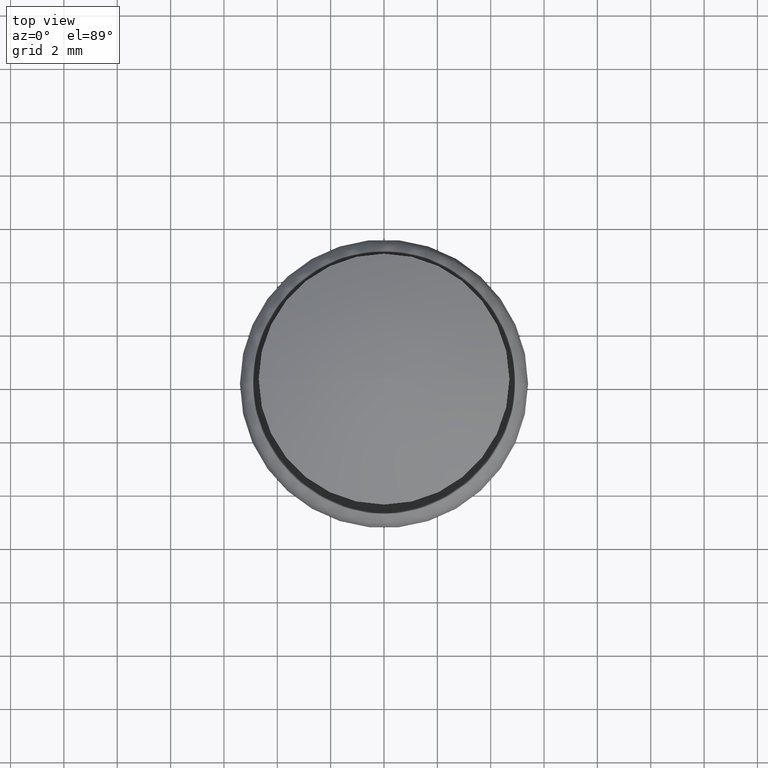
[diagram: clean part render]
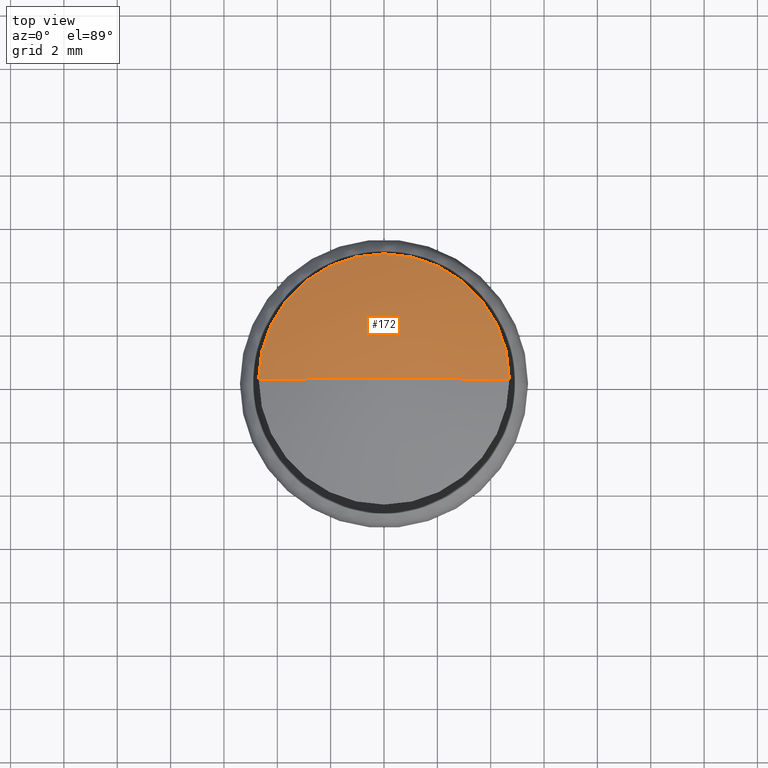
[diagram: same view with one face highlighted and labeled with its STEP entity id]
A machine part, top view. The second image highlights one B-rep face of the part: STEP entity #172.
In plain terms, the highlighted spherical surface has radius 11.545 mm.
Its self-contained STEP definition (entity closure, byte-faithful):
#172=ADVANCED_FACE('',(#798),#797,.T.);
#797=SPHERICAL_SURFACE('',#1439,1.15450000000E+01);
#798=FACE_OUTER_BOUND('',#1440,.T.);
#1436=CARTESIAN_POINT('',(0.00000000000E+00,0.00000000000E+00,-5.04500000000E+00));
#1437=DIRECTION('',(0.00000000000E+00,0.00000000000E+00,-1.00000000000E+00));
#1438=DIRECTION('',(-1.00000000000E+00,1.22460635382E-16,-0.00000000000E+00));
#1439=AXIS2_PLACEMENT_3D('',#1436,#1437,#1438);
#1440=EDGE_LOOP('',(#1928,#1929,#1930));
#1928=ORIENTED_EDGE('',*,*,#2170,.F.);
#1929=ORIENTED_EDGE('',*,*,#2171,.F.);
#1930=ORIENTED_EDGE('',*,*,#2172,.T.);
#2170=EDGE_CURVE('',#3296,#3297,#3298,.T.);
#2171=EDGE_CURVE('',#3304,#3296,#3305,.T.);
#2172=EDGE_CURVE('',#3304,#3297,#3311,.T.);
#3296=VERTEX_POINT('',#4235);
#3297=VERTEX_POINT('',#4236);
#3298=CIRCLE('',#4240,4.70000000000E+00);
#3304=VERTEX_POINT('',#4241);
#3305=(BOUNDED_CURVE() B_SPLINE_CURVE(2,(#4242,#4243,#4244),.UNSPECIFIED.,.F.,.F.) B_SPLINE_CURVE_WITH_KNOTS((3,3),(0.00000000000E+00,1.00000000000E+00),.UNSPECIFIED.) CURVE() GEOMETRIC_REPRESENTATION_ITEM() RATIONAL_B_SPLINE_CURVE((1.00000000000E+00,9.78105928985E-01,1.00000000000E+00)) REPRESENTATION_ITEM('') );
#3311=(BOUNDED_CURVE() B_SPLINE_CURVE(2,(#4245,#4246,#4247),.UNSPECIFIED.,.F.,.F.) B_SPLINE_CURVE_WITH_KNOTS((3,3),(0.00000000000E+00,1.00000000000E+00),.UNSPECIFIED.) CURVE() GEOMETRIC_REPRESENTATION_ITEM() RATIONAL_B_SPLINE_CURVE((7.50000000000E-01,7.33579446739E-01,7.50000000000E-01)) REPRESENTATION_ITEM('') );
#4235=CARTESIAN_POINT('',(-4.70000000000E+00,0.00000000000E+00,5.50000000000E+00));
#4236=CARTESIAN_POINT('',(4.70000000000E+00,0.00000000000E+00,5.50000000000E+00));
#4237=CARTESIAN_POINT('',(0.00000000000E+00,0.00000000000E+00,5.50000000000E+00));
#4238=DIRECTION('',(-0.00000000000E+00,0.00000000000E+00,-1.00000000000E+00));
#4239=DIRECTION('',(-1.00000000000E+00,-1.22460635382E-16,0.00000000000E+00));
#4240=AXIS2_PLACEMENT_3D('',#4237,#4238,#4239);
#4241=CARTESIAN_POINT('',(-7.06904017744E-16,8.65679151672E-32,6.50000000000E+00));
#4242=CARTESIAN_POINT('',(-7.06904017744E-16,8.65679151672E-32,6.50000000000E+00));
#4243=CARTESIAN_POINT('',(-2.45638297872E+00,3.00810220317E-16,6.50000000000E+00));
#4244=CARTESIAN_POINT('',(-4.70000000000E+00,5.75564986297E-16,5.50000000000E+00));
#4245=CARTESIAN_POINT('',(7.06904017744E-16,-9.86076131526E-32,6.50000000000E+00));
#4246=CARTESIAN_POINT('',(2.45638297872E+00,-3.02686513250E-16,6.50000000000E+00));
#4247=CARTESIAN_POINT('',(4.70000000000E+00,-8.88178419700E-16,5.50000000000E+00));